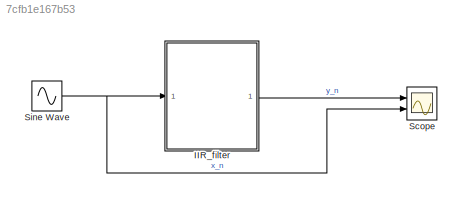
MODEL slx_7cfb1e167b53
KIND model
CONFIG AbsTol = auto
CONFIG EnableMultiTasking = off
CONFIG FixedStep = auto
CONFIG MaxStep = auto
CONFIG MinStep = auto
CONFIG RelTol = 1e-3
CONFIG SampleTimeConstraint = Unconstrained
CONFIG SolverName = VariableStepAuto
CONFIG StartTime = 0.0
CONFIG StopTime = 10.0
WORKSPACE source: mxarray member
WORKSPACE a1 = 0.5
WORKSPACE a2 = -0.25
WORKSPACE b0 = 1
WORKSPACE b1 = 0.4
BLOCK [ModelReference] IIR_filter
  ModelNameDialog = IIR_filter
  ModelReferenceVersion = 1.4
  Ports = [1, 1]
BLOCK [Scope] Scope
  Floating = off
  NumInputPorts = 2
  Ports = [2]
  ScopeSpecificationString = Simulink.scopes.TimeScopeBlockCfg('CurrentConfiguration', extmgr.ConfigurationSet(extmgr.Configuration('Core','General UI',true),extmgr.Configuration('Core','Source UI',true),extmgr.Configuration('Sources','WiredSimulink',true),extmgr.Configuration('Visuals','Time Domain',true,'SerializedDisplays',{struct('MinYLimReal','-2.2667','MaxYLimReal','2.19884','YLabelReal','','MinYLimMag','0.00000','MaxYL...<+2001ch>
BLOCK [Sin] Sine Wave
  Ports = [0, 1]
  SampleTime = 1
LINE IIR_filter:1 -> Scope:1
NET Sine Wave:1 -> IIR_filter:1, Scope:2
note: NET lines group one-source signal fan-out (src -> all destinations, sorted); 1:1 wires keep LINE
